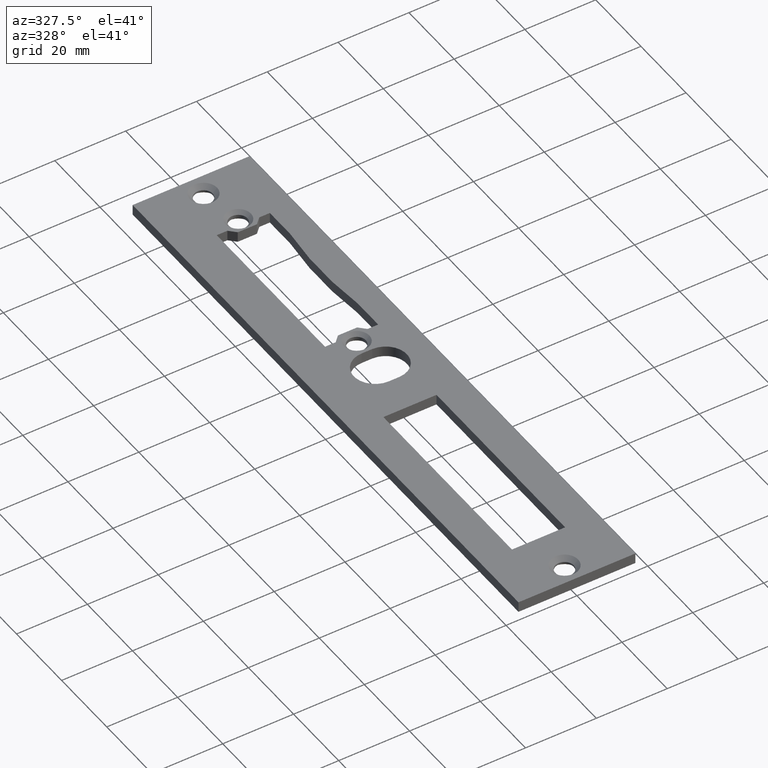
[diagram: clean part render]
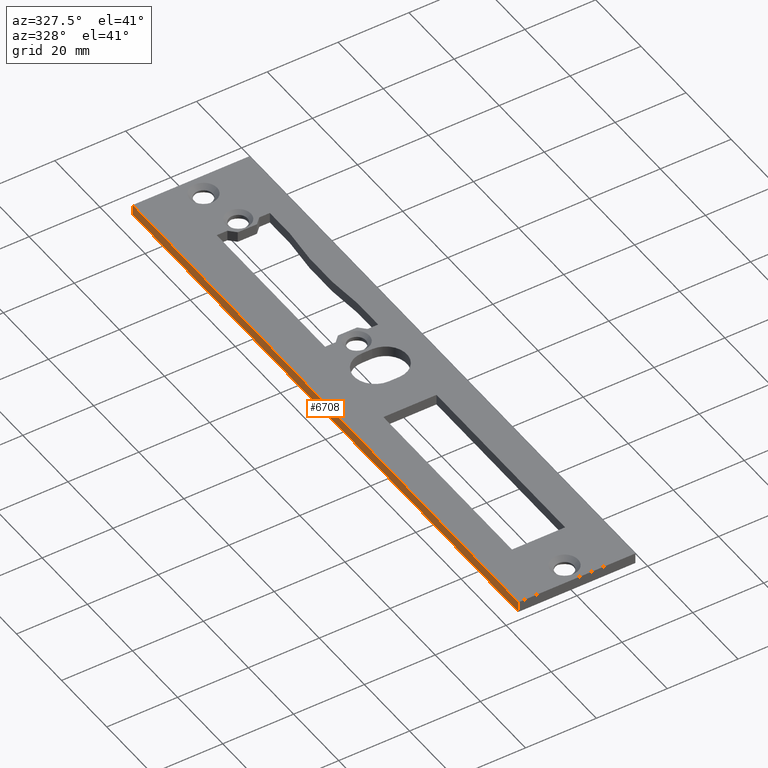
[diagram: same view with one face highlighted and labeled with its STEP entity id]
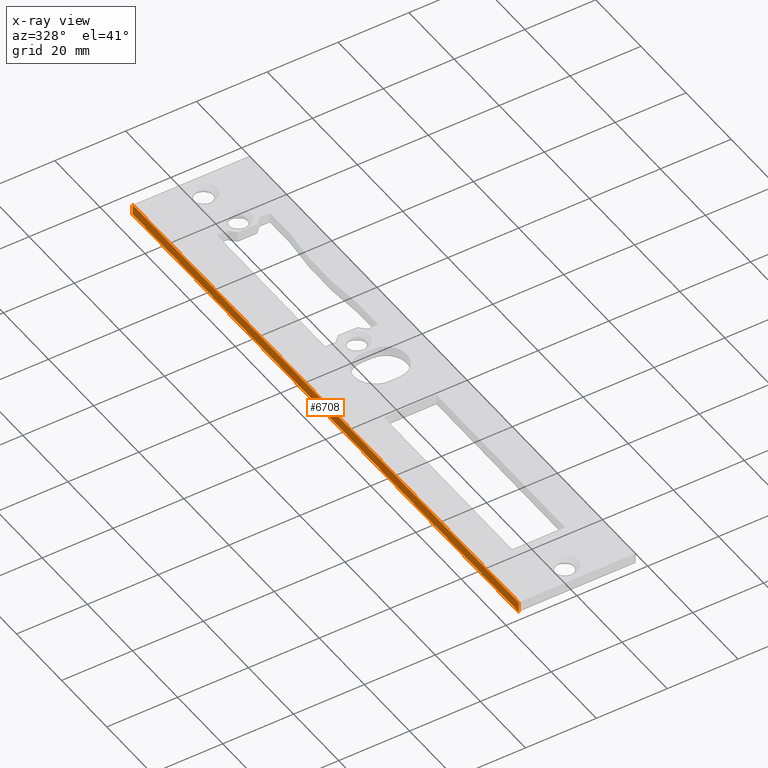
[diagram: x-ray of the same camera — body ghosted, the highlighted face saturated]
A machine part, auxiliary view. The second image highlights one B-rep face of the part: STEP entity #6708.
The next image is the same camera in x-ray: the body ghosted, the highlighted face saturated — about 0% of this face is hidden behind the body in this view.
In plain terms, the highlighted planar face has unit normal (1, 0, -0).
Its self-contained STEP definition (entity closure, byte-faithful):
#592 = VECTOR ( 'NONE', #2722, 1000.000000000000000 ) ;
#644 = CARTESIAN_POINT ( 'NONE',  ( -16.50000000000002132, 171.0000000000000000, 3.000000000000000888 ) ) ;
#715 = AXIS2_PLACEMENT_3D ( 'NONE', #9176, #7807, #3407 ) ;
#785 = VERTEX_POINT ( 'NONE', #1126 ) ;
#862 = ORIENTED_EDGE ( 'NONE', *, *, #9102, .F. ) ;
#1126 = CARTESIAN_POINT ( 'NONE',  ( -16.50000000000000000, 0.000000000000000000, 0.000000000000000000 ) ) ;
#1244 = LINE ( 'NONE', #4159, #8347 ) ;
#1362 = VERTEX_POINT ( 'NONE', #5643 ) ;
#1654 = VERTEX_POINT ( 'NONE', #7247 ) ;
#1702 = VECTOR ( 'NONE', #8629, 1000.000000000000000 ) ;
#2696 = DIRECTION ( 'NONE',  ( 1.217349807703022362E-16, -1.000000000000000000, 0.000000000000000000 ) ) ;
#2722 = DIRECTION ( 'NONE',  ( -0.000000000000000000, -0.000000000000000000, -1.000000000000000000 ) ) ;
#3360 = CARTESIAN_POINT ( 'NONE',  ( -16.50000000000000000, 0.000000000000000000, 3.000000000000000888 ) ) ;
#3407 = DIRECTION ( 'NONE',  ( -1.217349807703022609E-16, 1.000000000000000000, 0.000000000000000000 ) ) ;
#3702 = VERTEX_POINT ( 'NONE', #6001 ) ;
#3757 = ORIENTED_EDGE ( 'NONE', *, *, #4580, .T. ) ;
#4159 = CARTESIAN_POINT ( 'NONE',  ( -16.50000000000000000, -2.008627182709986664E-15, 0.000000000000000000 ) ) ;
#4222 = PLANE ( 'NONE',  #715 ) ;
#4580 = EDGE_CURVE ( 'NONE', #1654, #785, #1244, .T. ) ;
#4724 = VECTOR ( 'NONE', #7728, 1000.000000000000000 ) ;
#4879 = LINE ( 'NONE', #644, #592 ) ;
#4966 = FACE_OUTER_BOUND ( 'NONE', #7712, .T. ) ;
#5031 = ORIENTED_EDGE ( 'NONE', *, *, #8501, .F. ) ;
#5125 = EDGE_CURVE ( 'NONE', #3702, #1654, #4879, .T. ) ;
#5371 = ORIENTED_EDGE ( 'NONE', *, *, #5125, .T. ) ;
#5643 = CARTESIAN_POINT ( 'NONE',  ( -16.50000000000000000, 0.000000000000000000, 3.000000000000000888 ) ) ;
#5850 = CARTESIAN_POINT ( 'NONE',  ( -16.50000000000000000, -2.008627182709986664E-15, 3.000000000000000888 ) ) ;
#6001 = CARTESIAN_POINT ( 'NONE',  ( -16.50000000000002132, 171.0000000000000000, 3.000000000000000888 ) ) ;
#6708 = ADVANCED_FACE ( 'NONE', ( #4966 ), #4222, .F. ) ;
#6785 = LINE ( 'NONE', #5850, #1702 ) ;
#7247 = CARTESIAN_POINT ( 'NONE',  ( -16.50000000000002132, 171.0000000000000000, 0.000000000000000000 ) ) ;
#7712 = EDGE_LOOP ( 'NONE', ( #3757, #862, #5031, #5371 ) ) ;
#7728 = DIRECTION ( 'NONE',  ( -0.000000000000000000, -0.000000000000000000, -1.000000000000000000 ) ) ;
#7807 = DIRECTION ( 'NONE',  ( 1.000000000000000000, 1.217349807703022609E-16, -0.000000000000000000 ) ) ;
#8347 = VECTOR ( 'NONE', #2696, 1000.000000000000000 ) ;
#8501 = EDGE_CURVE ( 'NONE', #3702, #1362, #6785, .T. ) ;
#8629 = DIRECTION ( 'NONE',  ( 1.217349807703022362E-16, -1.000000000000000000, 0.000000000000000000 ) ) ;
#8761 = LINE ( 'NONE', #3360, #4724 ) ;
#9102 = EDGE_CURVE ( 'NONE', #1362, #785, #8761, .T. ) ;
#9176 = CARTESIAN_POINT ( 'NONE',  ( -16.50000000000000000, -2.008627182709986664E-15, 3.000000000000000888 ) ) ;